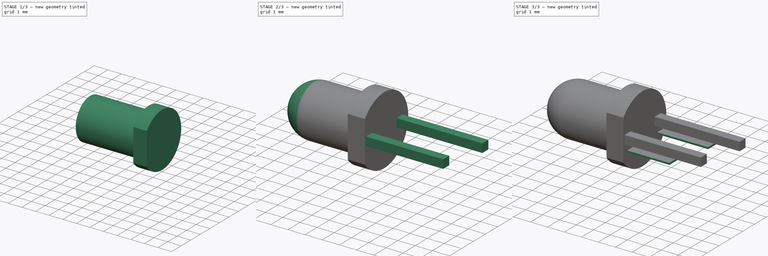
[diagram: build sequence overview — one tinted view per stage of 3, left to right]
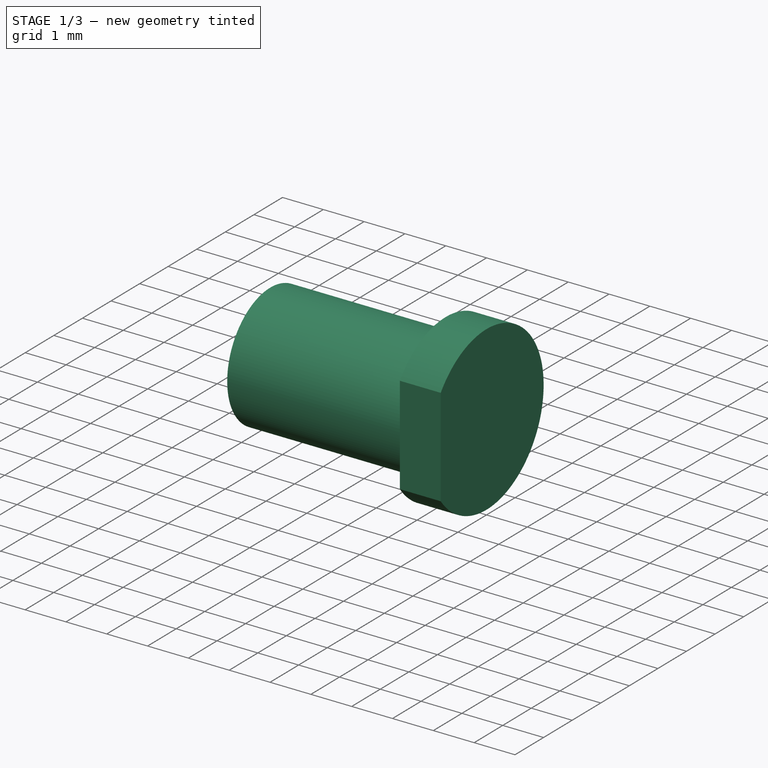
[diagram: stage 1 of 3 — iso view after this stage's code; geometry added in this stage tinted green]
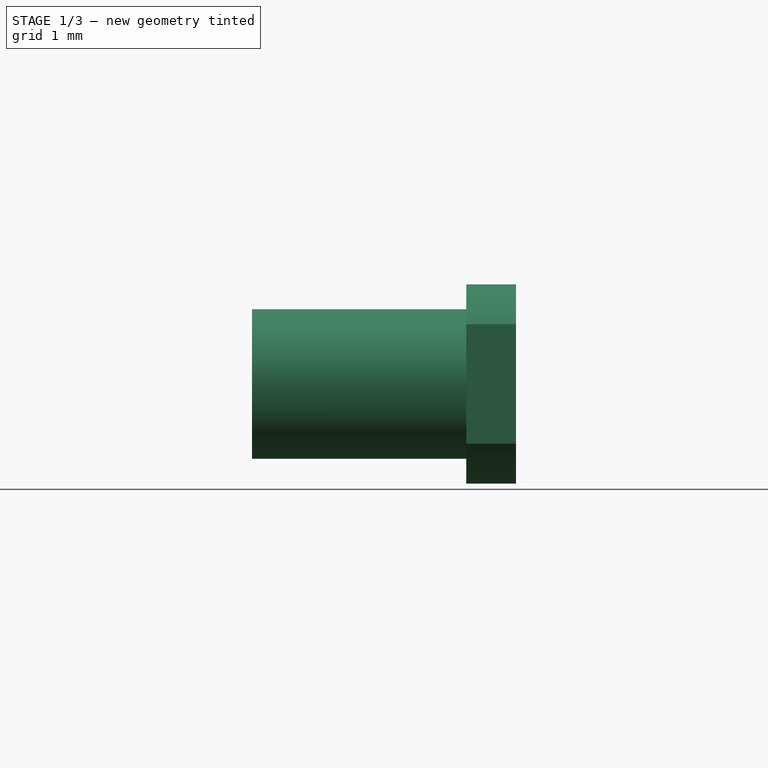
[diagram: stage 1 of 3 — front view after this stage's code; geometry added in this stage tinted green]
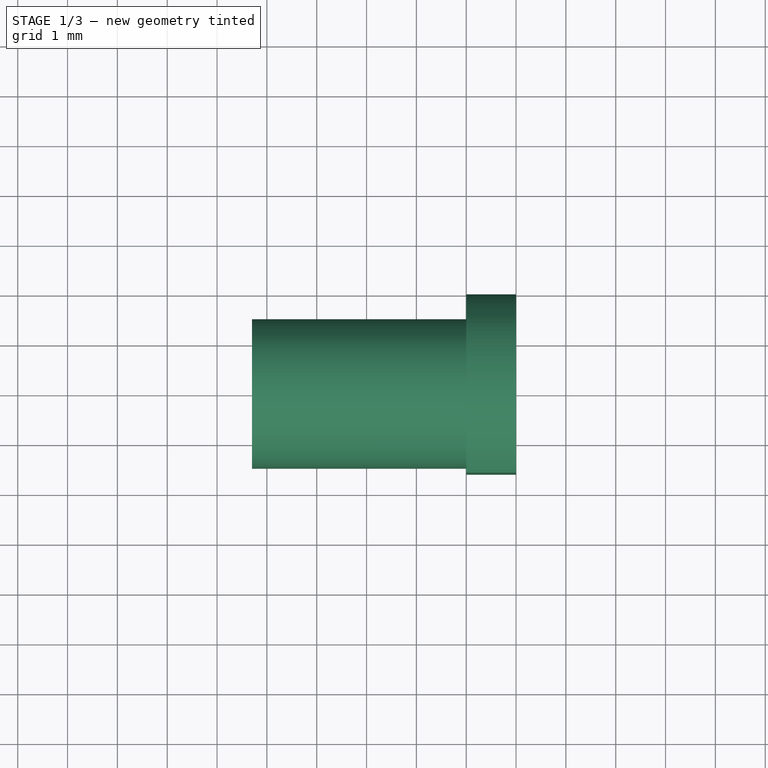
[diagram: stage 1 of 3 — top view after this stage's code; geometry added in this stage tinted green]
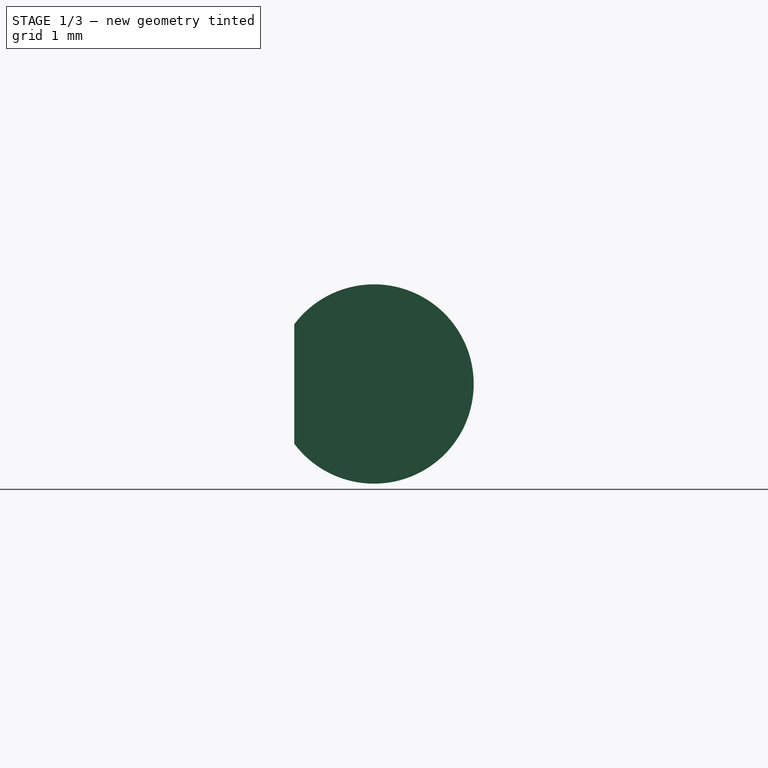
[diagram: stage 1 of 3 — right view after this stage's code; geometry added in this stage tinted green]
FCSTD DOCUMENT  (FreeCAD 0.19R24267 +148 (Git))
Label: led_3mm_green_edge_mount
License: All rights reserved
LicenseURL: http://en.wikipedia.org/wiki/All_rights_reserved
objects: Sketcher::SketchObject×6, PartDesign::Pad×6, PartDesign::Body×5, PartDesign::Fillet×1, App::DocumentObjectGroup×1
note: 25 computed .brp shape members not serialized (recipe doc carries the construction recipe); baked Part::Feature solids carry a one-line shape summary decoded from their .brp

FEATURE [PartDesign::Body] Body003  label="pin_cathode"
  Group = -> [Sketch003,Pad003]
  Origin = -> Origin003
  Placement = pos=(-2,0,0) rot=(0,0,1;0rad)
  Tip = -> Pad003
FEATURE [Sketcher::SketchObject] Sketch004
  FullyConstrained = true
  MapMode = 5
  Placement = pos=(0,0,0) rot=(0.57735,0.57735,0.57735;2.0944rad)
  Support = -> [YZ_Plane004]
  sketch-geometry (3):
    g0: ArcOfCircle CenterX=0 CenterY=0.25 CenterZ=0 NormalX=0 NormalY=0 NormalZ=1 AngleXU=0 Radius=2 StartAngle=3.78509 EndAngle=8.78128
    g1: LineSegment StartX=-1.6 StartY=1.45 StartZ=0 EndX=-1.6 EndY=-0.95 EndZ=0
    g2: LineSegment StartX=0 StartY=0 StartZ=0 EndX=0 EndY=0.25 EndZ=0
  constraints (9):
    c: Coincident(g1,g0)
    c: Coincident(g1,g0)
    c: Vertical(g1)
    c: Coincident(g2,g-1)
    c: Coincident(g2,g0)
    c: Vertical(g2)
    c: DistanceY(g2,g2) = 0.25
    c: Diameter(g0) = 4
    c: DistanceX(g0,g-1) = 1.6
FEATURE [PartDesign::Pad] Pad004
  Direction = (1,1,1)
  Length = 1
  Length2 = 100
  Placement = pos=(0,0,0) rot=(0.57735,0.57735,0.57735;2.0944rad)
  Profile = -> Sketch004
  Reversed = true
  Type = 0
FEATURE [Sketcher::SketchObject] Sketch005
  FullyConstrained = true
  MapMode = 5
  Placement = pos=(-1,4e-16,-3e-16) rot=(0.57735,0.57735,-0.57735;4.18879rad)
  Support = -> [Pad004]
  sketch-geometry (2):
    g0: LineSegment StartX=0 StartY=0 StartZ=0 EndX=0 EndY=-0.25 EndZ=0
    g1: Circle CenterX=0 CenterY=-0.25 CenterZ=0 NormalX=0 NormalY=0 NormalZ=1 AngleXU=0 Radius=1.5
  constraints (5):
    c: Coincident(g0,g-1)
    c: Coincident(g1,g0)
    c: Vertical(g0)
    c: DistanceY(g0,g0) = 0.25
    c: Diameter(g1) = 3
FEATURE [PartDesign::Pad] Pad005
  BaseFeature = -> Pad004
  Direction = (1,1,1)
  Length = 4.3
  Length2 = 100
  Placement = pos=(0,0,0) rot=(0.57735,0.57735,0.57735;2.0944rad)
  Profile = -> Sketch005
  Type = 0
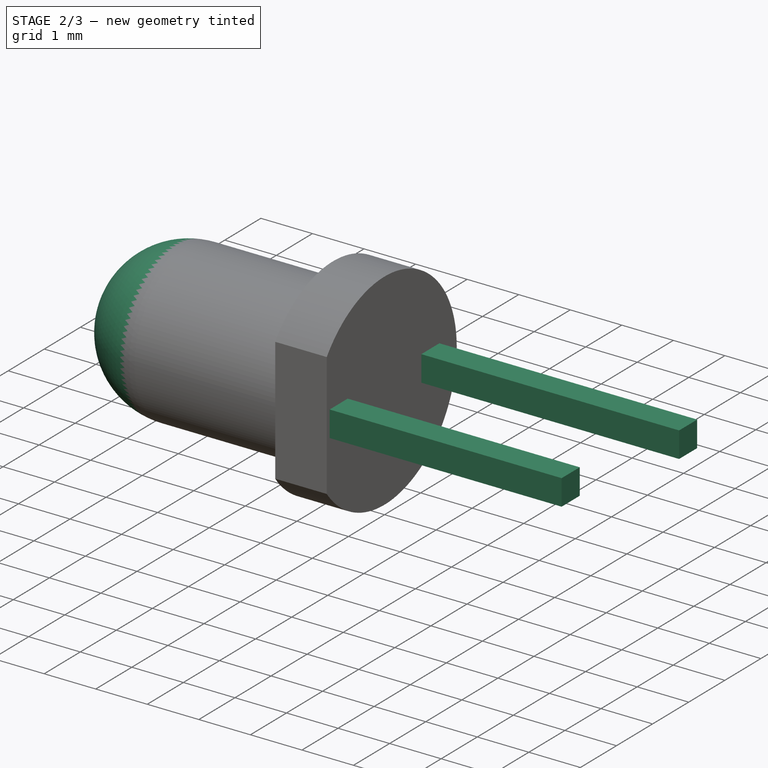
[diagram: stage 2 of 3 — iso view after this stage's code; geometry added in this stage tinted green]
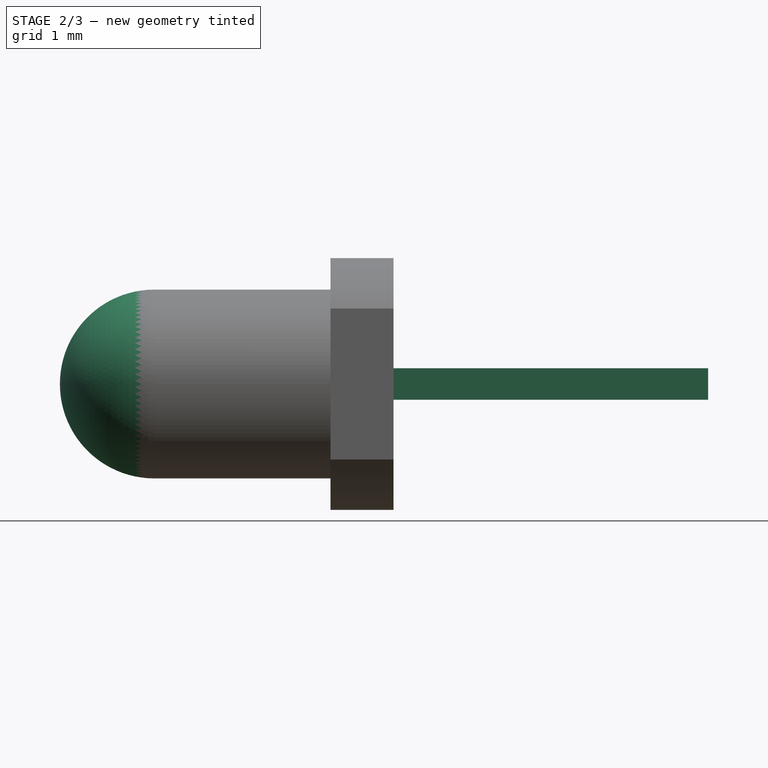
[diagram: stage 2 of 3 — front view after this stage's code; geometry added in this stage tinted green]
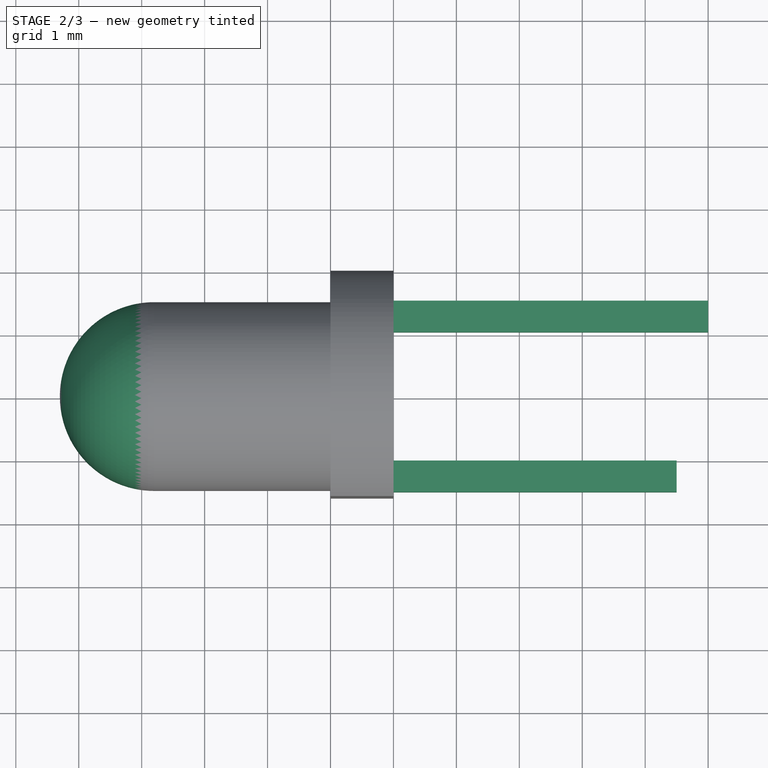
[diagram: stage 2 of 3 — top view after this stage's code; geometry added in this stage tinted green]
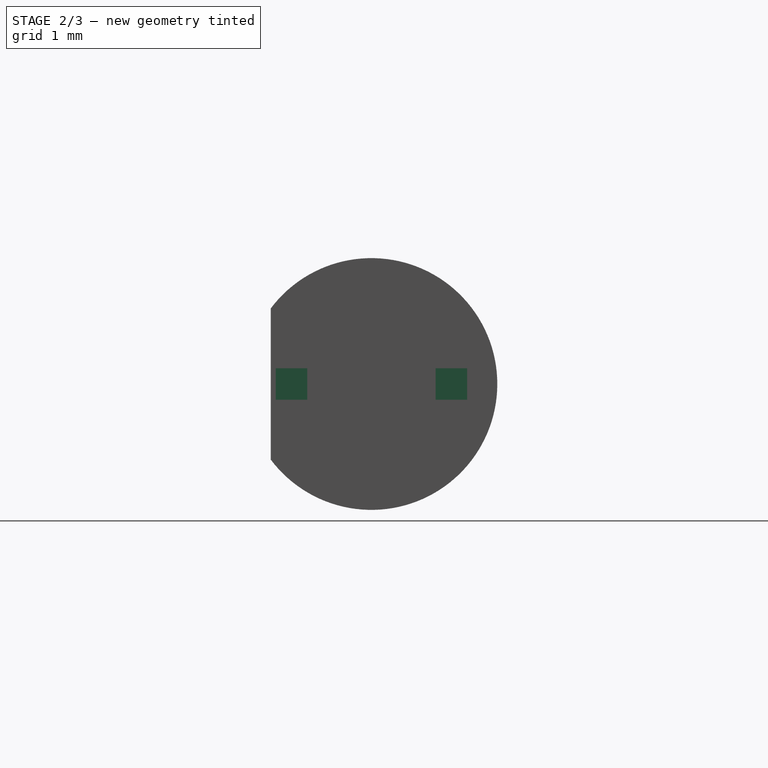
[diagram: stage 2 of 3 — right view after this stage's code; geometry added in this stage tinted green]
FEATURE [PartDesign::Body] Body001  label="pad_cathode"
  Group = -> [Sketch001,Pad001]
  Origin = -> Origin001
  Tip = -> Pad001
FEATURE [Sketcher::SketchObject] Sketch002
  FullyConstrained = true
  MapMode = 5
  Placement = pos=(0,0,0) rot=(0.57735,0.57735,0.57735;2.0944rad)
  Support = -> [YZ_Plane002]
  sketch-geometry (6):
    g0: LineSegment StartX=1.02 StartY=0.5 StartZ=0 EndX=1.52 EndY=0.5 EndZ=0
    g1: LineSegment StartX=1.52 StartY=0.5 StartZ=0 EndX=1.52 EndY=0 EndZ=0
    g2: LineSegment StartX=1.52 StartY=0 StartZ=0 EndX=1.02 EndY=0 EndZ=0
    g3: LineSegment StartX=1.02 StartY=0 StartZ=0 EndX=1.02 EndY=0.5 EndZ=0
    g4: LineSegment StartX=1.02 StartY=0 StartZ=0 EndX=1.27 EndY=0 EndZ=0
    g5: LineSegment StartX=1.27 StartY=0 StartZ=0 EndX=1.52 EndY=0 EndZ=0
  constraints (17):
    c: Coincident(g0,g1)
    c: Coincident(g1,g2)
    c: Coincident(g2,g3)
    c: Coincident(g3,g0)
    c: Horizontal(g0)
    c: Horizontal(g2)
    c: Vertical(g1)
    c: Vertical(g3)
    c: DistanceY(g-1,g2) = 0
    c: Coincident(g4,g2)
    c: Coincident(g5,g4)
    c: Coincident(g5,g1)
    c: DistanceX(g-1,g4) = 1.27
    c: Equal(g4,g5)
    c: DistanceY(g1,g1) = 0.5
    c: Equal(g1,g2)
    c: Horizontal(g4)
FEATURE [PartDesign::Pad] Pad002
  Direction = (1,1,1)
  Length = 5
  Length2 = 100
  Placement = pos=(0,0,0) rot=(0.57735,0.57735,0.57735;2.0944rad)
  Profile = -> Sketch002
  Type = 0
FEATURE [PartDesign::Body] Body002  label="pin_anode"
  Group = -> [Sketch002,Pad002]
  Origin = -> Origin002
  Placement = pos=(-2,0,0) rot=(0,0,1;0rad)
  Tip = -> Pad002
FEATURE [Sketcher::SketchObject] Sketch003
  FullyConstrained = true
  MapMode = 5
  Placement = pos=(0,0,0) rot=(0.57735,0.57735,0.57735;2.0944rad)
  Support = -> [YZ_Plane003]
  sketch-geometry (6):
    g0: LineSegment StartX=-1.52 StartY=0 StartZ=0 EndX=-1.27 EndY=0 EndZ=0
    g1: LineSegment StartX=-1.27 StartY=0 StartZ=0 EndX=-1.02 EndY=0 EndZ=0
    g2: LineSegment StartX=-1.52 StartY=0.5 StartZ=0 EndX=-1.02 EndY=0.5 EndZ=0
    g3: LineSegment StartX=-1.02 StartY=0.5 StartZ=0 EndX=-1.02 EndY=0 EndZ=0
    g4: LineSegment StartX=-1.02 StartY=0 StartZ=0 EndX=-1.52 EndY=0 EndZ=0
    g5: LineSegment StartX=-1.52 StartY=0 StartZ=0 EndX=-1.52 EndY=0.5 EndZ=0
  constraints (17):
    c: Coincident(g1,g0)
    c: Coincident(g2,g3)
    c: Coincident(g3,g4)
    c: Coincident(g4,g5)
    c: Coincident(g5,g2)
    c: Horizontal(g2)
    c: Horizontal(g4)
    c: Vertical(g3)
    c: Vertical(g5)
    c: Coincident(g3,g1)
    c: Coincident(g0,g4)
    c: Equal(g1,g0)
    c: DistanceX(g0,g-1) = 1.27
    c: DistanceY(g5,g5) = 0.5
    c: Equal(g4,g3)
    c: Horizontal(g0)
    c: DistanceY(g-1,g3) = 0
FEATURE [PartDesign::Pad] Pad003
  Direction = (1,1,1)
  Length = 4.5
  Length2 = 100
  Placement = pos=(0,0,0) rot=(0.57735,0.57735,0.57735;2.0944rad)
  Profile = -> Sketch003
  Type = 0
FEATURE [PartDesign::Fillet] Fillet
  Base = -> Pad005 [Edge9]
  BaseFeature = -> Pad005
  Placement = pos=(0,0,0) rot=(0.57735,0.57735,0.57735;2.0944rad)
  Radius = 1.5
  SupportTransform = false
FEATURE [PartDesign::Body] Body004  label="led_body"
  Group = -> [Sketch004,Pad004,Sketch005,Pad005,Fillet]
  Origin = -> Origin004
  Placement = pos=(-2,0,0) rot=(0,0,1;0rad)
  Tip = -> Fillet
FEATURE [App::DocumentObjectGroup] Group  label="led"
  Group = -> [Body004,Body002,Body003]
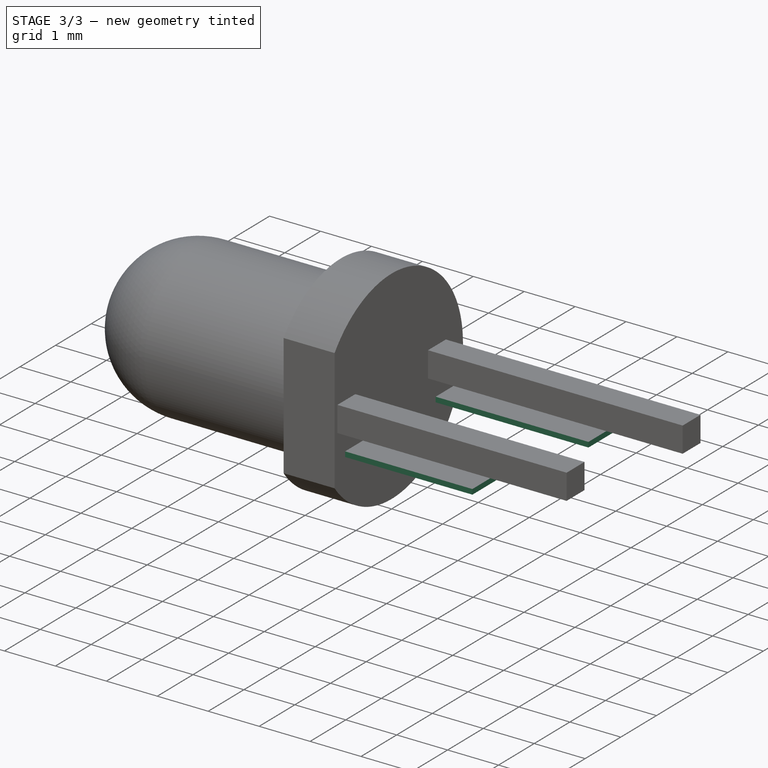
[diagram: stage 3 of 3 — iso view after this stage's code; geometry added in this stage tinted green]
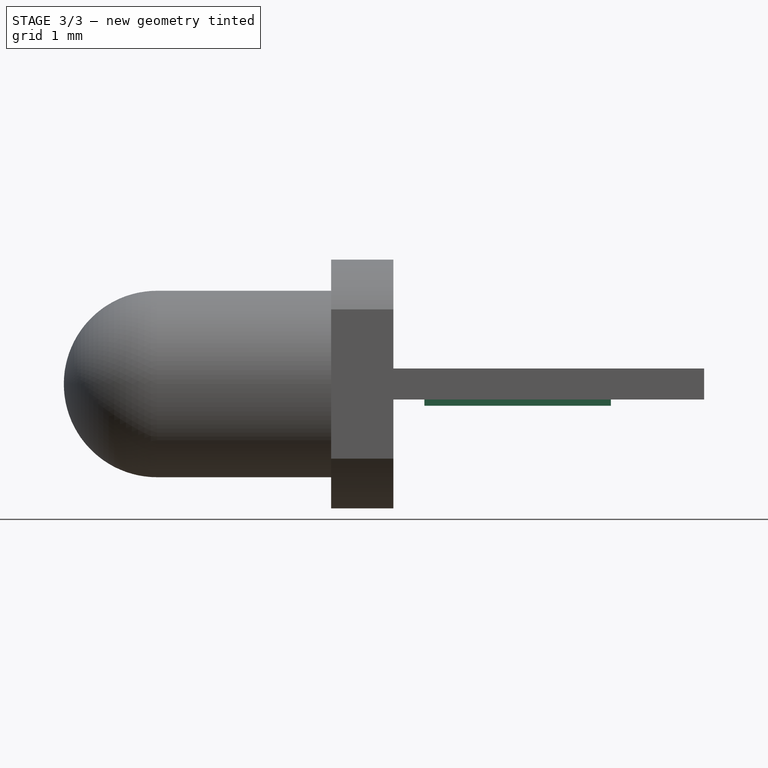
[diagram: stage 3 of 3 — front view after this stage's code; geometry added in this stage tinted green]
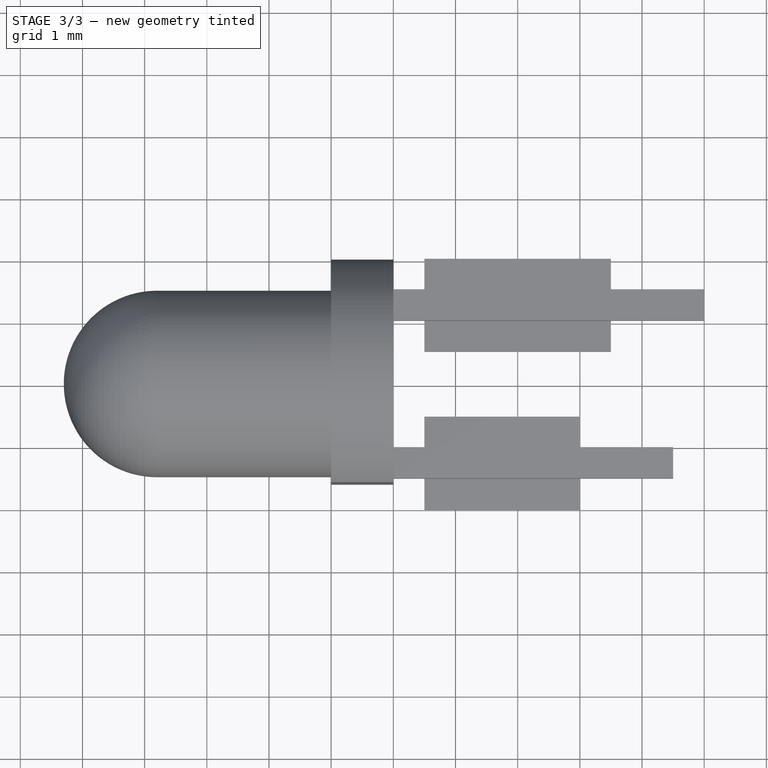
[diagram: stage 3 of 3 — top view after this stage's code; geometry added in this stage tinted green]
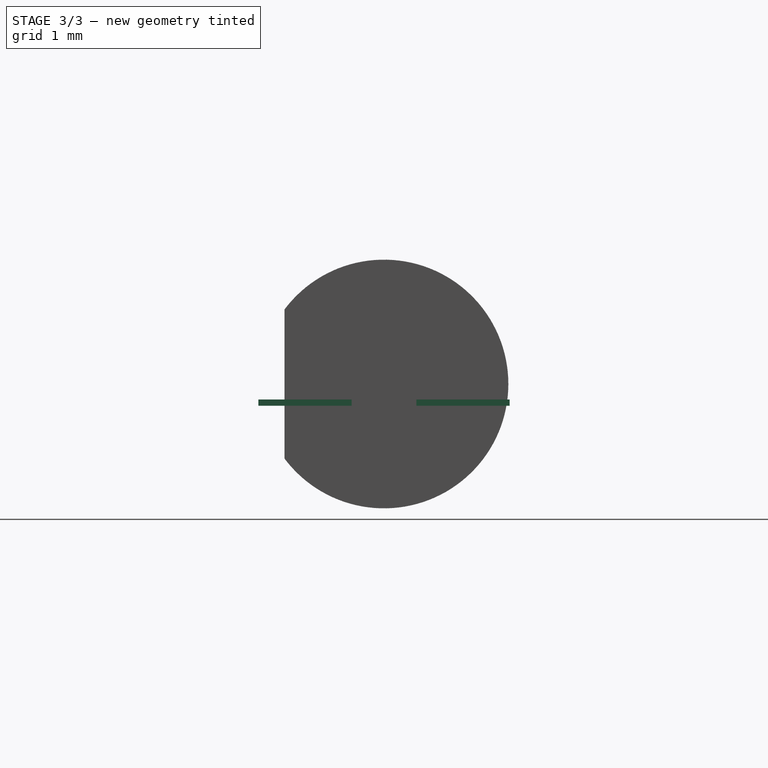
[diagram: stage 3 of 3 — right view after this stage's code; geometry added in this stage tinted green]
FEATURE [Sketcher::SketchObject] Sketch
  FullyConstrained = true
  MapMode = 5
  Support = -> [XY_Plane]
  sketch-geometry (6):
    g0: LineSegment StartX=0.5 StartY=2.02 StartZ=0 EndX=3.5 EndY=2.02 EndZ=0
    g1: LineSegment StartX=3.5 StartY=2.02 StartZ=0 EndX=3.5 EndY=0.52 EndZ=0
    g2: LineSegment StartX=3.5 StartY=0.52 StartZ=0 EndX=0.5 EndY=0.52 EndZ=0
    g3: LineSegment StartX=0.5 StartY=0.52 StartZ=0 EndX=0.5 EndY=2.02 EndZ=0
    g4: LineSegment StartX=0.5 StartY=2.02 StartZ=0 EndX=0.5 EndY=1.27 EndZ=0
    g5: LineSegment StartX=0.5 StartY=0.52 StartZ=0 EndX=0.5 EndY=1.27 EndZ=0
  constraints (17):
    c: Coincident(g0,g1)
    c: Coincident(g1,g2)
    c: Coincident(g2,g3)
    c: Coincident(g3,g0)
    c: Horizontal(g0)
    c: Horizontal(g2)
    c: Vertical(g1)
    c: Vertical(g3)
    c: DistanceX(g0,g0) = 3
    c: DistanceY(g3,g3) = 1.5
    c: DistanceX(g-1,g2) = 0.5
    c: Coincident(g4,g0)
    c: Coincident(g5,g2)
    c: Coincident(g5,g4)
    c: DistanceY(g-1,g4) = 1.27
    c: Equal(g5,g4)
    c: Vertical(g4)
FEATURE [PartDesign::Pad] Pad
  Direction = (1,1,1)
  Length = 0.1
  Length2 = 100
  Profile = -> Sketch
  Reversed = true
  Type = 0
FEATURE [PartDesign::Body] Body  label="pad_anode"
  Group = -> [Sketch,Pad]
  Origin = -> Origin
  Tip = -> Pad
FEATURE [Sketcher::SketchObject] Sketch001
  FullyConstrained = true
  MapMode = 5
  Support = -> [XY_Plane001]
  sketch-geometry (6):
    g0: LineSegment StartX=0.5 StartY=-0.52 StartZ=0 EndX=0.5 EndY=-1.27 EndZ=0
    g1: LineSegment StartX=0.5 StartY=-1.27 StartZ=0 EndX=0.5 EndY=-2.02 EndZ=0
    g2: LineSegment StartX=0.5 StartY=-0.52 StartZ=0 EndX=3 EndY=-0.52 EndZ=0
    g3: LineSegment StartX=3 StartY=-0.52 StartZ=0 EndX=3 EndY=-2.02 EndZ=0
    g4: LineSegment StartX=3 StartY=-2.02 StartZ=0 EndX=0.5 EndY=-2.02 EndZ=0
    g5: LineSegment StartX=0.5 StartY=-2.02 StartZ=0 EndX=0.5 EndY=-0.52 EndZ=0
  constraints (17):
    c: Coincident(g1,g0)
    c: Vertical(g0)
    c: Equal(g1,g0)
    c: Coincident(g2,g3)
    c: Coincident(g3,g4)
    c: Coincident(g4,g5)
    c: Coincident(g5,g2)
    c: Horizontal(g2)
    c: Horizontal(g4)
    c: Vertical(g3)
    c: Vertical(g5)
    c: Coincident(g2,g0)
    c: Coincident(g1,g4)
    c: DistanceY(g0,g-1) = 1.27
    c: DistanceY(g5,g5) = 1.5
    c: DistanceX(g4,g4) = 2.5
    c: DistanceX(g-1,g2) = 0.5
FEATURE [PartDesign::Pad] Pad001
  Direction = (1,1,1)
  Length = 0.1
  Length2 = 100
  Profile = -> Sketch001
  Reversed = true
  Type = 0
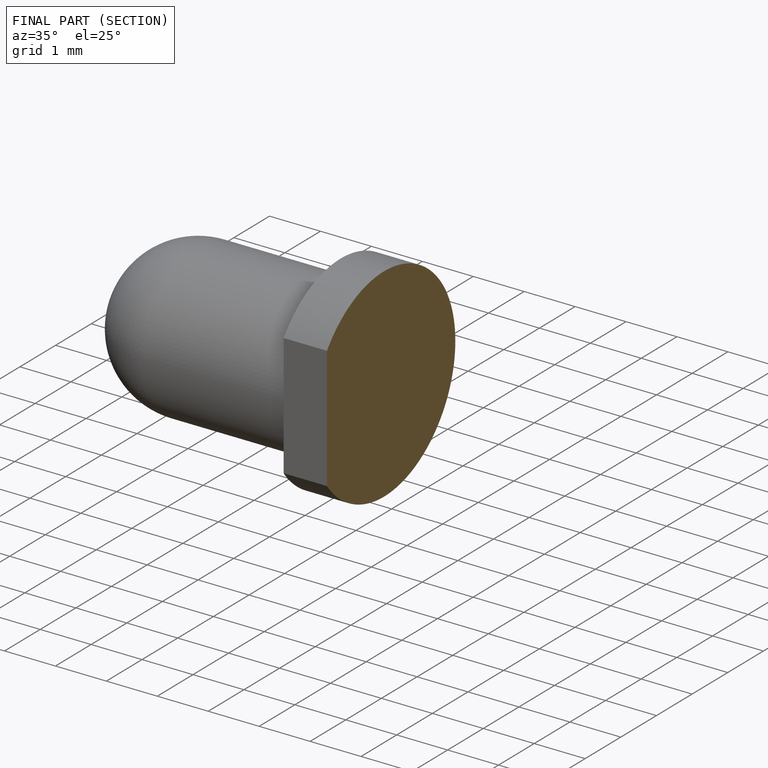
[diagram: finished part — half-section view (interior)]
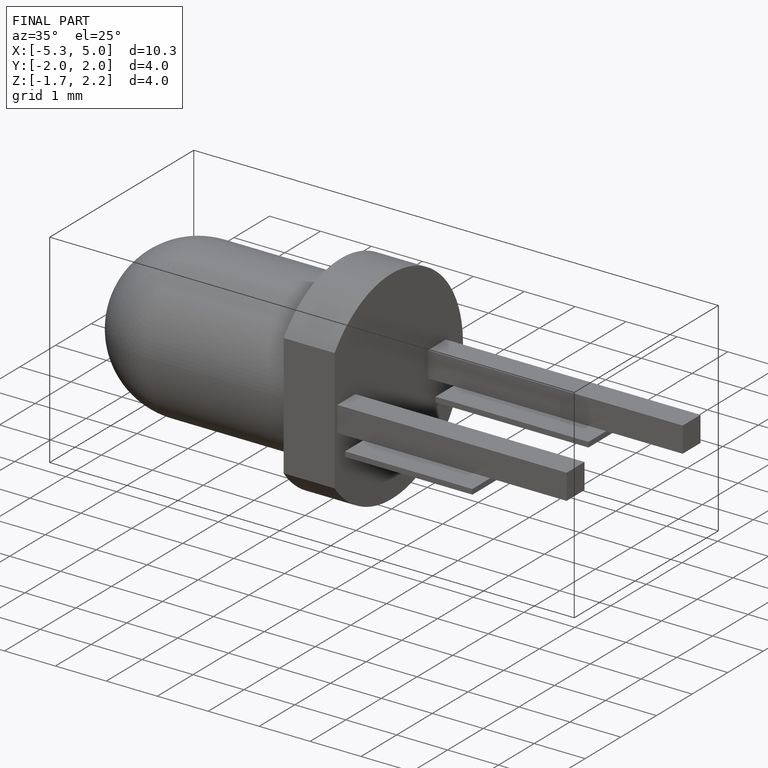
[diagram: finished part — iso view with bounding-box wireframe]
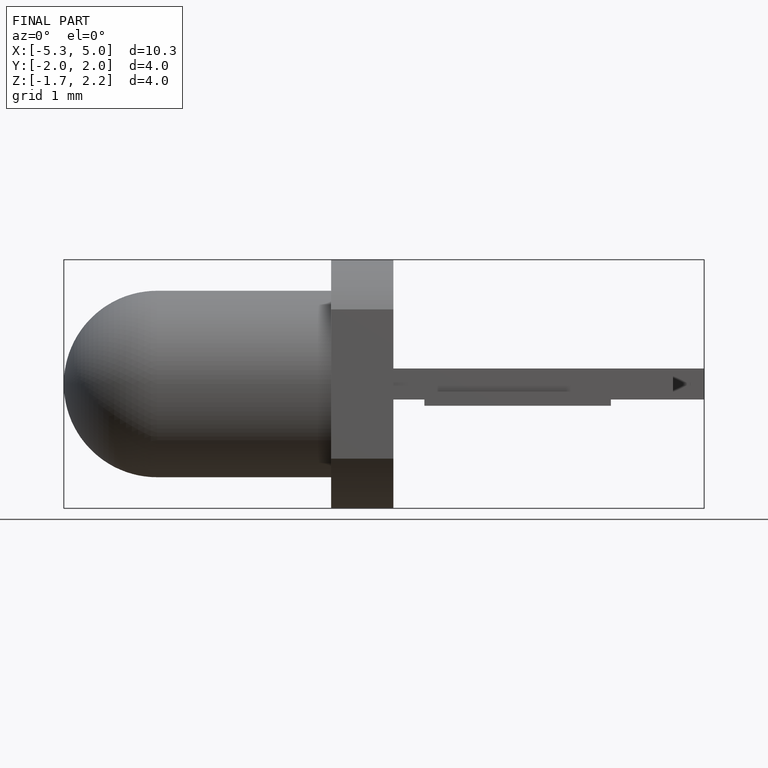
[diagram: finished part — front view with bounding-box wireframe]
